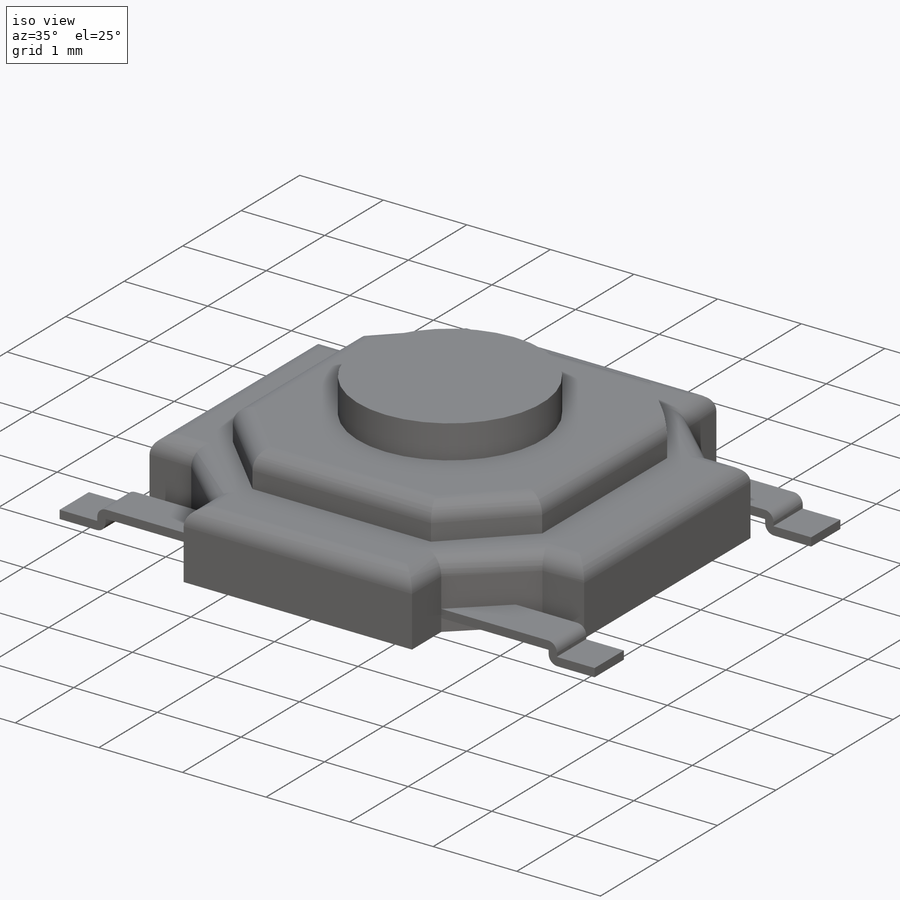
[diagram: iso view]
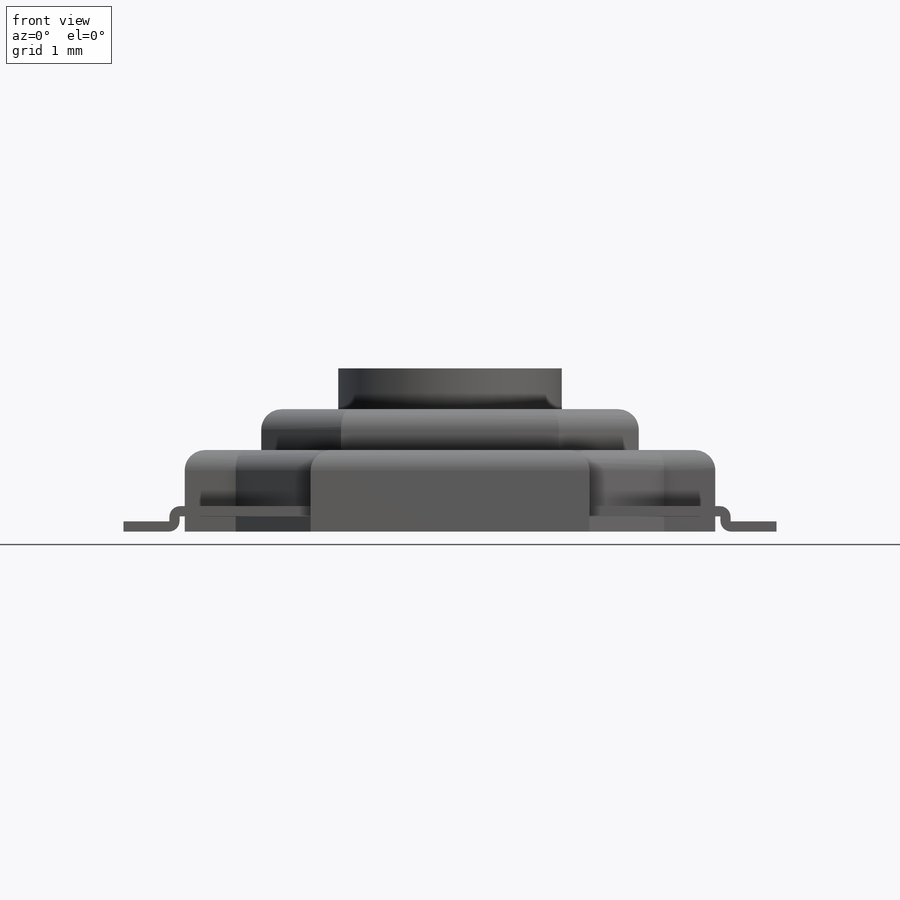
[diagram: front view]
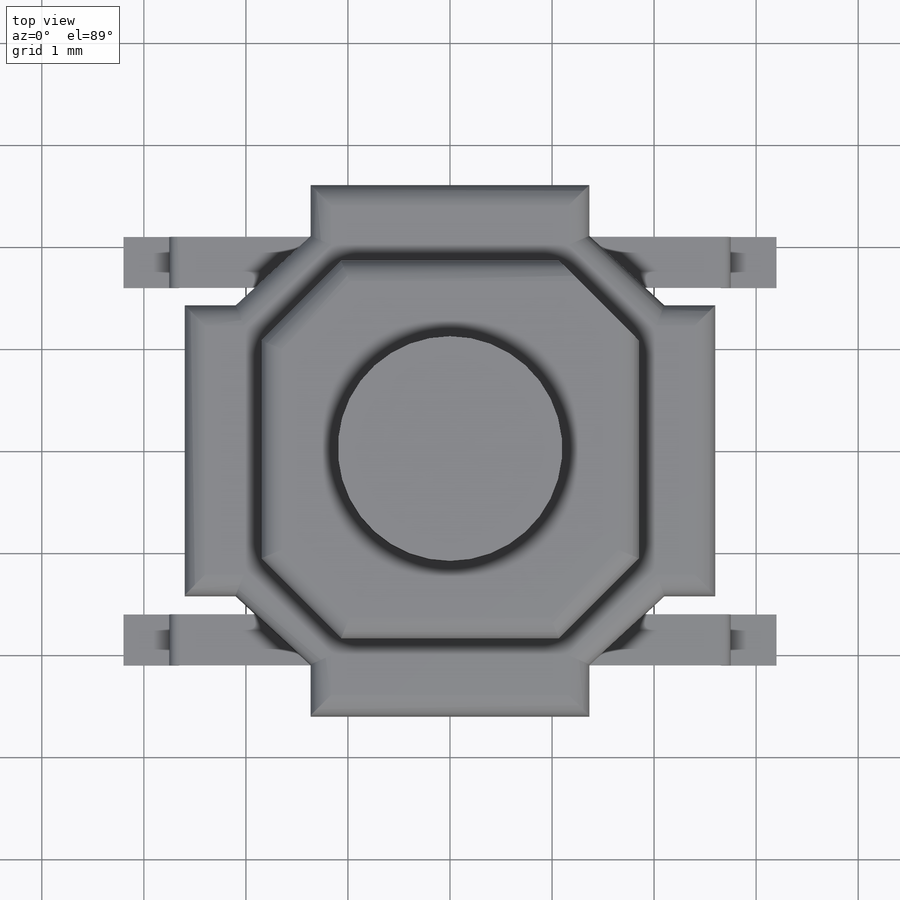
[diagram: top view]
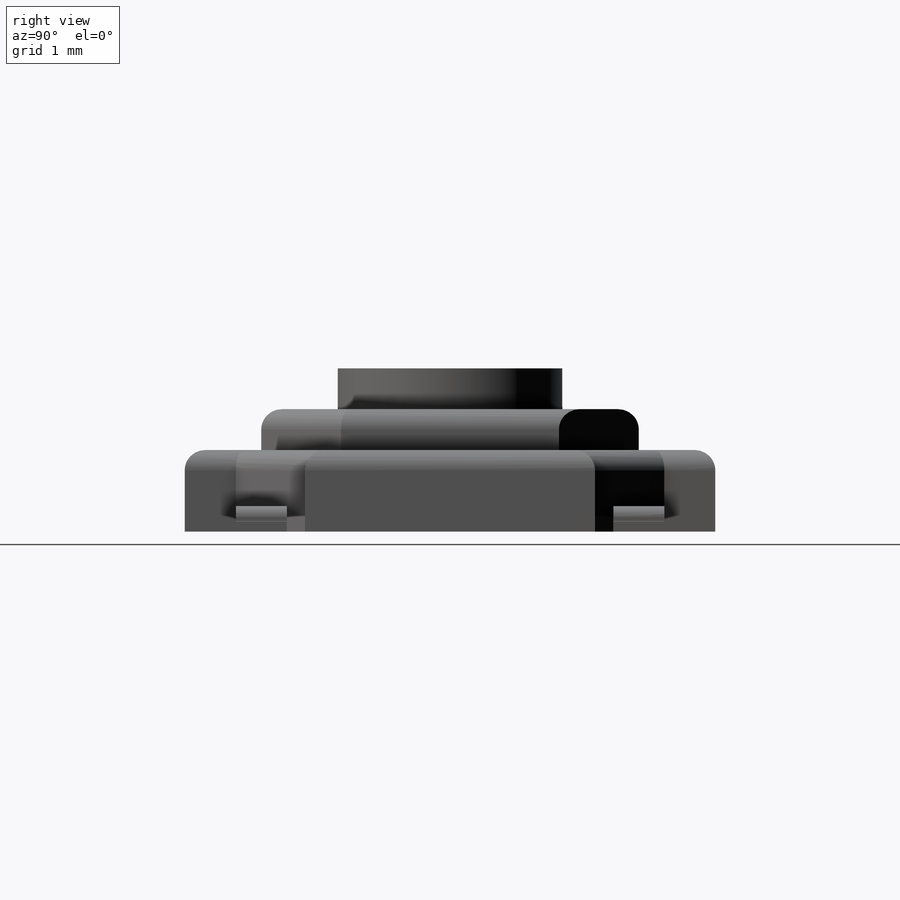
[diagram: right view]
SOLIDWORKS PART (.sldprt)
format: sldprt  version: not decoded by parser v0  size: 497,152 bytes
history: native  units: mm
features: sketch x15, sheet_metal_op x6, plane x4, extrude x3, mirror x2, fillet x2, material x1, cut_extrude x1 + 4 further entries (+13 scaffold rows collapsed; 4 parser-record rows omitted)
feature tree (55):
  scaffold x13  (default folders/planes/origin — collapsed)
  material  "Material <not specified>"
  sketch  "Sketch1"  dims[D1=5.2mm D2=5.2mm]
  extrude  "Boss-Extrude1"  Depth=0.8mm
  sketch  "Sketch2"  dims[c1.D1=3.7mm c1.D2=3.7mm c2.D1=3.7mm c2.D2=3.7mm c2.D3=1.0427mm c3.D3=135.0deg]
  extrude  "Boss-Extrude2"  Depth=0.4mm
  sketch  "Sketch3"  dims[D1=2.2mm]
  extrude  "Boss-Extrude3"  Depth=0.4mm
  plane  "Plane1"
  plane  "Plane2"  Offset=1.85mm
  plane  "Plane3"  Offset=1.85mm
  plane  "Plane5"
  sketch  "Sketch4"  dims[c1.D1=~0.280001mm c2.D1=135.0deg c2.D2=0.5mm c3.D1=1.0mm]
  cut_extrude  "Cut-Extrude1"  [1 undecoded]
  sketch  "Sketch5"  dims[c1.D1=3.2mm c1.D2=0.0mm c1.D3=0.05mm c1.D4=0.15mm c1.D5=0.1mm c2.D1=0.005mm c2.D2=0.5 c2.D3=0.0mm c2.D6=500.0mm]
  sheet_metal_op  "Base-Flange1"
  sheet_metal_op  "BaseBend2"
  mirror  "Mirror1"
  mirror  "Mirror2"
  fillet  "Fillet1"  Radius=0.2mm
  fillet  "Fillet2"  Radius=0.2mm
  sketch  "Bend-Lines1"
  sketch  "Bounding-Box1"
  sheet_metal_op  "Sheet-Metal5"
  "Flat-Pattern5"
  sketch  "Bend-Lines2"
  sketch  "Bounding-Box2"
  parser-record x4  (decoder bookkeeping rows leaked as tree rows — omitted from the tree; the rows remain in map.json)
  sheet_metal_op  "Sheet-Metal6"
  "Flat-Pattern6"
  sketch  "Bend-Lines3"
  sketch  "Bounding-Box3"
  sheet_metal_op  "Sheet-Metal7"
  "Flat-Pattern7"
  sketch  "Bend-Lines4"
  sketch  "Bounding-Box4"
  sheet_metal_op  "Sheet-Metal8"
  "Flat-Pattern8"
  sketch  "Bend-Lines5"
  sketch  "Bounding-Box5"
decode coverage: 10 of 29 modeling features carry decoded parameters; 4 rows unclassified (native names shown)
note: ~ marks probable driven/reference dimensions
note: 1 parameter value undecoded
note: suppression state not decoded; provenance and decode notes live in map.json
